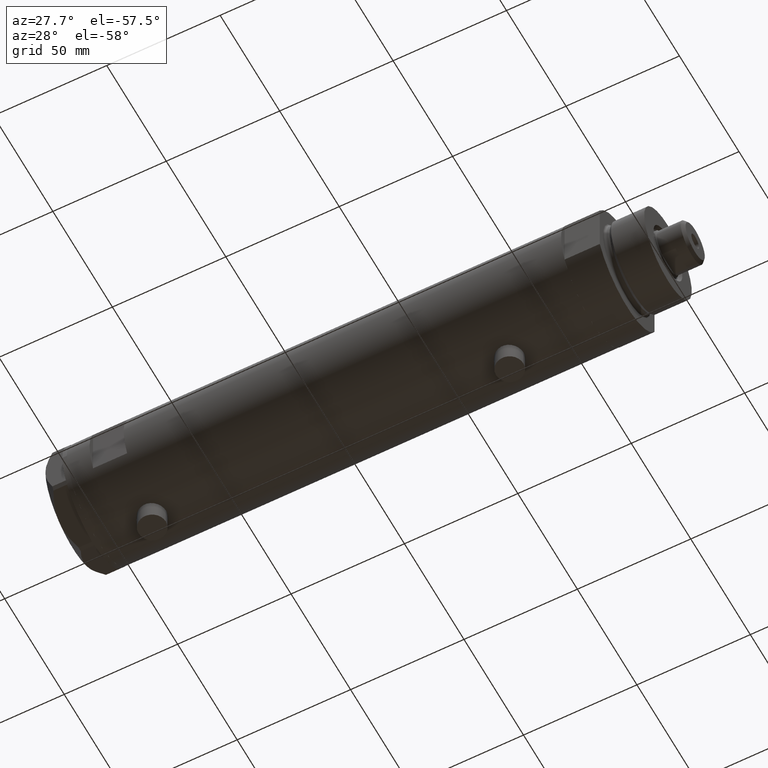
[diagram: clean part render]
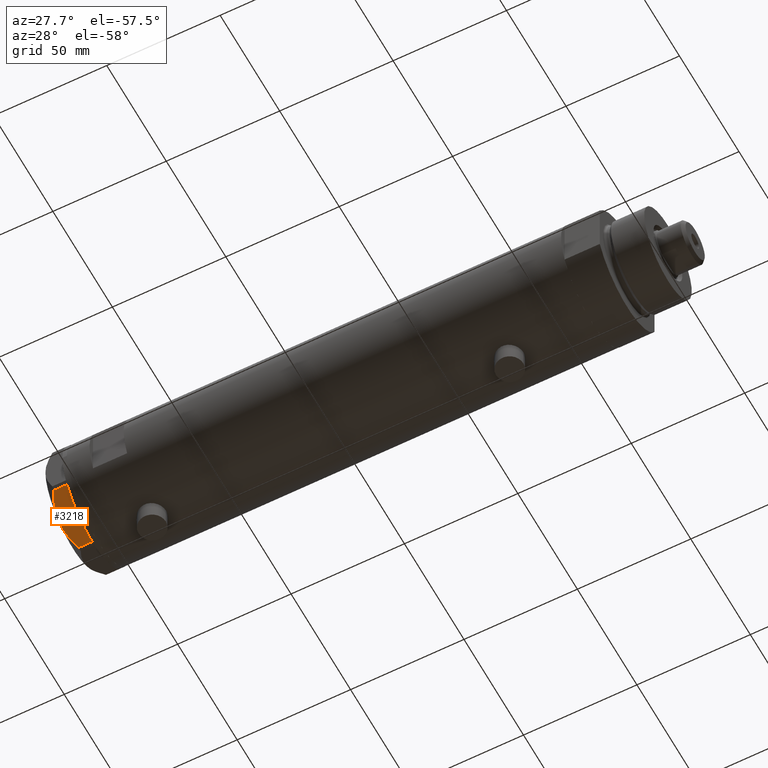
[diagram: same view with one face highlighted and labeled with its STEP entity id]
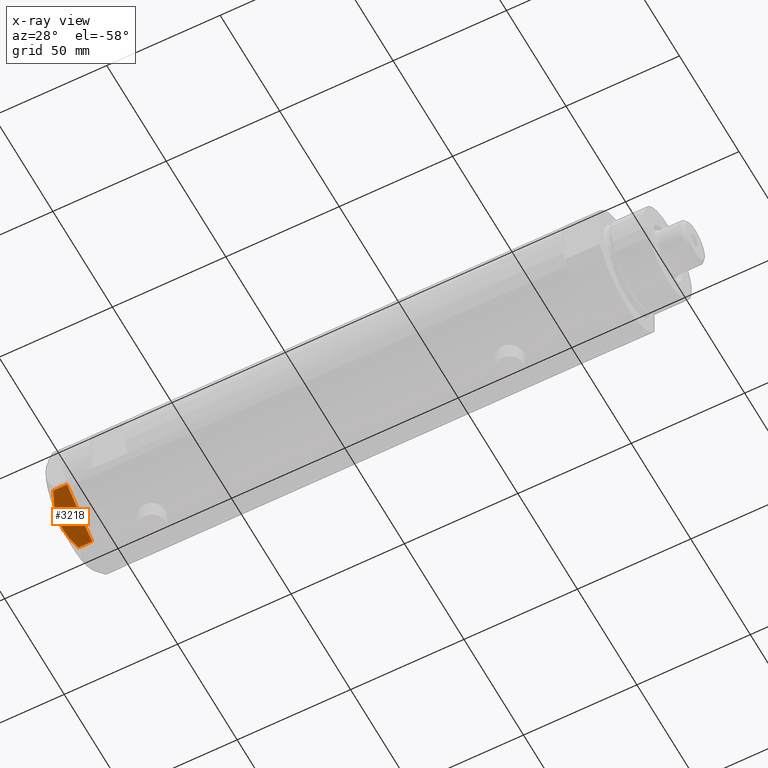
[diagram: x-ray of the same camera — body ghosted, the highlighted face saturated]
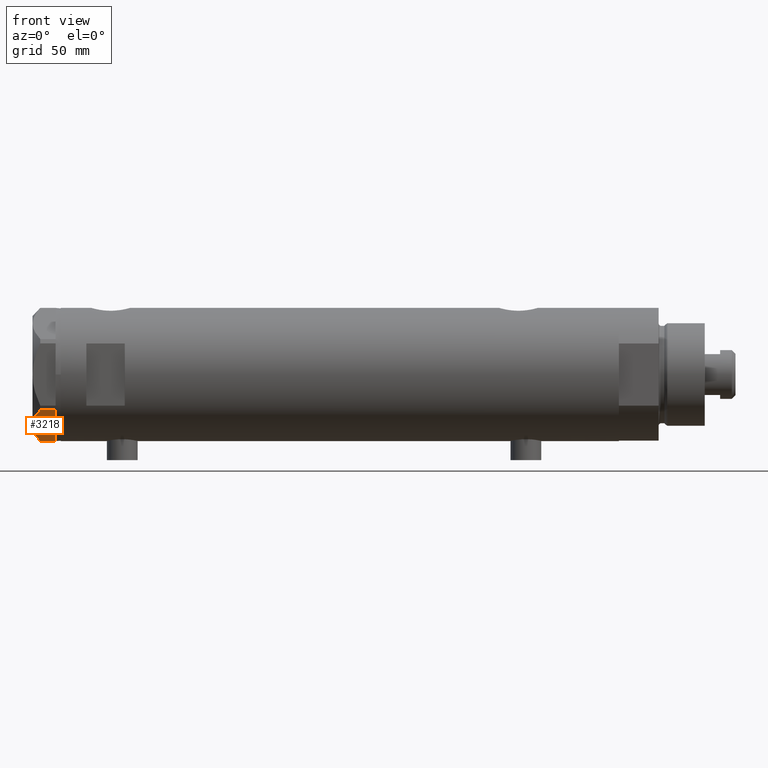
[diagram: same view with one face highlighted and labeled with its STEP entity id]
A machine part, auxiliary view. The second image highlights one B-rep face of the part: STEP entity #3218.
The next image is the same camera in x-ray: the body ghosted, the highlighted face saturated — about 0% of this face is hidden behind the body in this view.
A second angle (front view) of the same face is appended — the face is thin or edge-on in the first view.
In plain terms, the highlighted planar face has unit normal (0, 0.5, 0.866).
Its self-contained STEP definition (entity closure, byte-faithful):
#138 = CARTESIAN_POINT ( 'NONE',  ( -9.197898616902920210, 21.24770314027494678, 8.852712638955802404 ) ) ;
#142 = CARTESIAN_POINT ( 'NONE',  ( -0.9999999999999089617, 25.98076211353316367, 0.000000000000000000 ) ) ;
#151 = EDGE_CURVE ( 'NONE', #4013, #829, #200, .T. ) ;
#200 = LINE ( 'NONE', #1692, #1448 ) ;
#208 = CARTESIAN_POINT ( 'NONE',  ( -0.9699484522385772856, 25.99811238272273783, 0.000000000000000000 ) ) ;
#210 = AXIS2_PLACEMENT_3D ( 'NONE', #3980, #604, #3606 ) ;
#264 = LINE ( 'NONE', #1751, #2147 ) ;
#456 = CARTESIAN_POINT ( 'NONE',  ( -19.07486218896994856, 15.54523556316589961, 7.397272853991406549 ) ) ;
#460 = CARTESIAN_POINT ( 'NONE',  ( -11.50000000000004441, 19.91858428704211548, 9.000000000000000000 ) ) ;
#484 = CARTESIAN_POINT ( 'NONE',  ( -9.656518383329848021, 20.98291889467267168, 8.907842277728436287 ) ) ;
#509 = CARTESIAN_POINT ( 'NONE',  ( -10.58093321976963175, 20.44920774001128549, 8.981686407609499767 ) ) ;
#533 = ORIENTED_EDGE ( 'NONE', *, *, #151, .T. ) ;
#539 = ORIENTED_EDGE ( 'NONE', *, *, #944, .T. ) ;
#554 = CARTESIAN_POINT ( 'NONE',  ( -18.64279229058394804, 15.79469123530778951, 7.570552255229721084 ) ) ;
#602 = CARTESIAN_POINT ( 'NONE',  ( -22.03005154776144181, 13.83905619136131371, 5.983800287807625295 ) ) ;
#604 = DIRECTION ( 'NONE',  ( 0.5000000000000009992, -0.8660254037844381525, 0.000000000000000000 ) ) ;
#829 = VERTEX_POINT ( 'NONE', #4027 ) ;
#865 = CARTESIAN_POINT ( 'NONE',  ( -17.32831362639718975, 16.55360584592005679, 8.040681765829335248 ) ) ;
#869 = CARTESIAN_POINT ( 'NONE',  ( -2.626494320835632390, 25.04170517956325881, 6.877782426143454586 ) ) ;
#887 = VERTEX_POINT ( 'NONE', #602 ) ;
#944 = EDGE_CURVE ( 'NONE', #1708, #2642, #264, .T. ) ;
#973 = LINE ( 'NONE', #4267, #1141 ) ;
#1021 = ORIENTED_EDGE ( 'NONE', *, *, #3434, .T. ) ;
#1141 = VECTOR ( 'NONE', #3200, 1000.000000000000000 ) ;
#1162 = CARTESIAN_POINT ( 'NONE',  ( -0.9699484522384356211, 25.99811238272282310, 5.983800287807548912 ) ) ;
#1223 = CARTESIAN_POINT ( 'NONE',  ( -20.35958612119326361, 14.80349985506240884, 6.844201024438374859 ) ) ;
#1225 = VERTEX_POINT ( 'NONE', #1162 ) ;
#1247 = CARTESIAN_POINT ( 'NONE',  ( -22.03005154776144181, 13.83905619136131371, 5.983800287807625295 ) ) ;
#1328 = LINE ( 'NONE', #3155, #2787 ) ;
#1334 = DIRECTION ( 'NONE',  ( -0.8660254037844380415, -0.5000000000000008882, 0.000000000000000000 ) ) ;
#1441 = DIRECTION ( 'NONE',  ( -0.8660254037844380415, -0.5000000000000008882, 0.000000000000000000 ) ) ;
#1448 = VECTOR ( 'NONE', #1334, 1000.000000000000227 ) ;
#1486 = LINE ( 'NONE', #3620, #3271 ) ;
#1615 = ORIENTED_EDGE ( 'NONE', *, *, #1744, .T. ) ;
#1692 = CARTESIAN_POINT ( 'NONE',  ( 0.000000000000000000, 26.55811238272274366, 0.000000000000000000 ) ) ;
#1708 = VERTEX_POINT ( 'NONE', #208 ) ;
#1744 = EDGE_CURVE ( 'NONE', #829, #887, #973, .T. ) ;
#1751 = CARTESIAN_POINT ( 'NONE',  ( 0.000000000000000000, 26.55811238272274366, 0.000000000000000000 ) ) ;
#1895 = CARTESIAN_POINT ( 'NONE',  ( -22.00000000000008171, 13.85640646055089498, 0.000000000000000000 ) ) ;
#1967 = CARTESIAN_POINT ( 'NONE',  ( -13.32175508098984729, 18.86679350063496585, 9.000000000000088818 ) ) ;
#2147 = VECTOR ( 'NONE', #1441, 1000.000000000000227 ) ;
#2451 = FACE_OUTER_BOUND ( 'NONE', #4518, .T. ) ;
#2463 = DIRECTION ( 'NONE',  ( -0.8660254037844380415, -0.5000000000000008882, 0.000000000000000000 ) ) ;
#2642 = VERTEX_POINT ( 'NONE', #142 ) ;
#2743 = CARTESIAN_POINT ( 'NONE',  ( -21.20080365460318461, 14.31782268570115768, 6.431317509509388408 ) ) ;
#2776 = CARTESIAN_POINT ( 'NONE',  ( -0.9699484522384356211, 25.99811238272282310, 5.983800287807548912 ) ) ;
#2787 = VECTOR ( 'NONE', #3855, 1000.000000000000000 ) ;
#2975 = CARTESIAN_POINT ( 'NONE',  ( -11.50000000000004441, 19.91858428704211548, 9.000000000000000000 ) ) ;
#3074 = CARTESIAN_POINT ( 'NONE',  ( -11.50000000000004441, 19.91858428704211548, 9.000000000000000000 ) ) ;
#3150 = EDGE_CURVE ( 'NONE', #1225, #3457, #4779, .T. ) ;
#3155 = CARTESIAN_POINT ( 'NONE',  ( -0.9699484522385775076, 25.99811238272273783, 9.000000000000000000 ) ) ;
#3200 = DIRECTION ( 'NONE',  ( 0.000000000000000000, 0.000000000000000000, 1.000000000000000000 ) ) ;
#3218 = ADVANCED_FACE ( 'NONE', ( #2451 ), #4761, .F. ) ;
#3271 = VECTOR ( 'NONE', #2463, 1000.000000000000227 ) ;
#3351 = ORIENTED_EDGE ( 'NONE', *, *, #4641, .F. ) ;
#3434 = EDGE_CURVE ( 'NONE', #2642, #4013, #1486, .T. ) ;
#3457 = VERTEX_POINT ( 'NONE', #2975 ) ;
#3530 = CARTESIAN_POINT ( 'NONE',  ( -7.836767740116576952, 22.03355241838985279, 8.637313967156947214 ) ) ;
#3606 = DIRECTION ( 'NONE',  ( 0.8660254037844380415, 0.5000000000000008882, 0.000000000000000000 ) ) ;
#3620 = CARTESIAN_POINT ( 'NONE',  ( 0.000000000000000000, 26.55811238272274366, 0.000000000000000000 ) ) ;
#3635 = ORIENTED_EDGE ( 'NONE', *, *, #4069, .T. ) ;
#3821 = CARTESIAN_POINT ( 'NONE',  ( -17.77001848220191604, 16.29858742851882170, 7.892128867758443356 ) ) ;
#3828 = CARTESIAN_POINT ( 'NONE',  ( -6.946777556903624529, 22.54738849024398206, 8.426899937603780089 ) ) ;
#3855 = DIRECTION ( 'NONE',  ( 0.000000000000000000, 0.000000000000000000, -1.000000000000000000 ) ) ;
#3906 = CARTESIAN_POINT ( 'NONE',  ( -4.320186229909880105, 24.06385169993494699, 7.629374868826106493 ) ) ;
#3924 = CARTESIAN_POINT ( 'NONE',  ( -15.11535457301033247, 17.83125835109856183, 8.707651728477001640 ) ) ;
#3980 = CARTESIAN_POINT ( 'NONE',  ( 0.000000000000000000, 26.55811238272274366, 9.000000000000000000 ) ) ;
#4013 = VERTEX_POINT ( 'NONE', #1895 ) ;
#4027 = CARTESIAN_POINT ( 'NONE',  ( -22.03005154776142760, 13.83905619136131904, 0.000000000000000000 ) ) ;
#4069 = EDGE_CURVE ( 'NONE', #1225, #1708, #1328, .T. ) ;
#4267 = CARTESIAN_POINT ( 'NONE',  ( -22.03005154776143115, 13.83905619136131726, 9.000000000000000000 ) ) ;
#4300 = CARTESIAN_POINT ( 'NONE',  ( -11.04134848610939557, 20.18338686205100885, 9.000000000000094147 ) ) ;
#4518 = EDGE_LOOP ( 'NONE', ( #533, #1615, #3351, #4699, #3635, #539, #1021 ) ) ;
#4641 = EDGE_CURVE ( 'NONE', #3457, #887, #4744, .T. ) ;
#4699 = ORIENTED_EDGE ( 'NONE', *, *, #3150, .F. ) ;
#4744 = B_SPLINE_CURVE_WITH_KNOTS ( 'NONE', 3,
 ( #3074, #1967, #3924, #865, #3821, #554, #456, #1223, #2743, #1247 ),
 .UNSPECIFIED., .F., .F.,
 ( 4, 2, 2, 2, 4 ),
 ( 0.01376519981810312397, 0.01998941321701588544, 0.02154546656674408145, 0.02310151991647227399, 0.02621362661592866600 ),
 .UNSPECIFIED. ) ;
#4761 = PLANE ( 'NONE',  #210 ) ;
#4779 = B_SPLINE_CURVE_WITH_KNOTS ( 'NONE', 3,
 ( #2776, #869, #3906, #3828, #3530, #138, #484, #509, #4300, #460 ),
 .UNSPECIFIED., .F., .F.,
 ( 4, 2, 2, 2, 4 ),
 ( 0.001228959670438516723, 0.007497079744270820564, 0.01063113978118697227, 0.01219816979964504812, 0.01376519981810312397 ),
 .UNSPECIFIED. ) ;